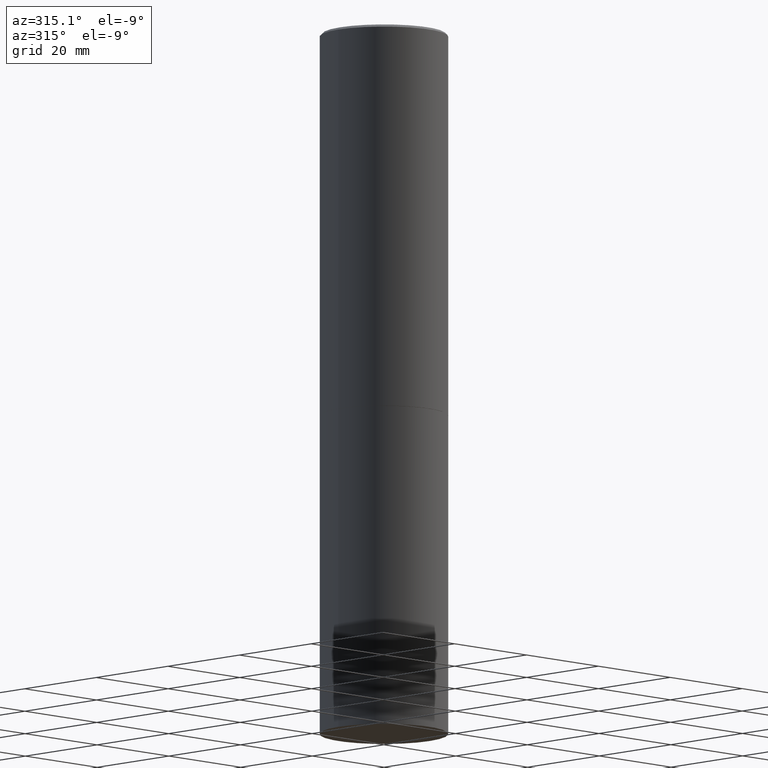
[diagram: clean part render]
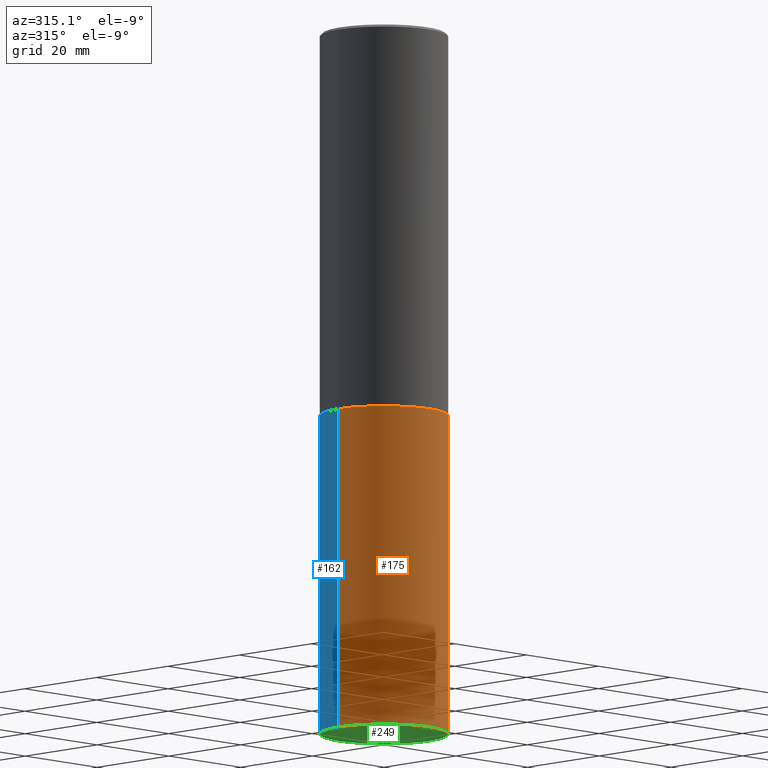
[diagram: same view with three faces highlighted in distinct colors, each labeled with its STEP entity id]
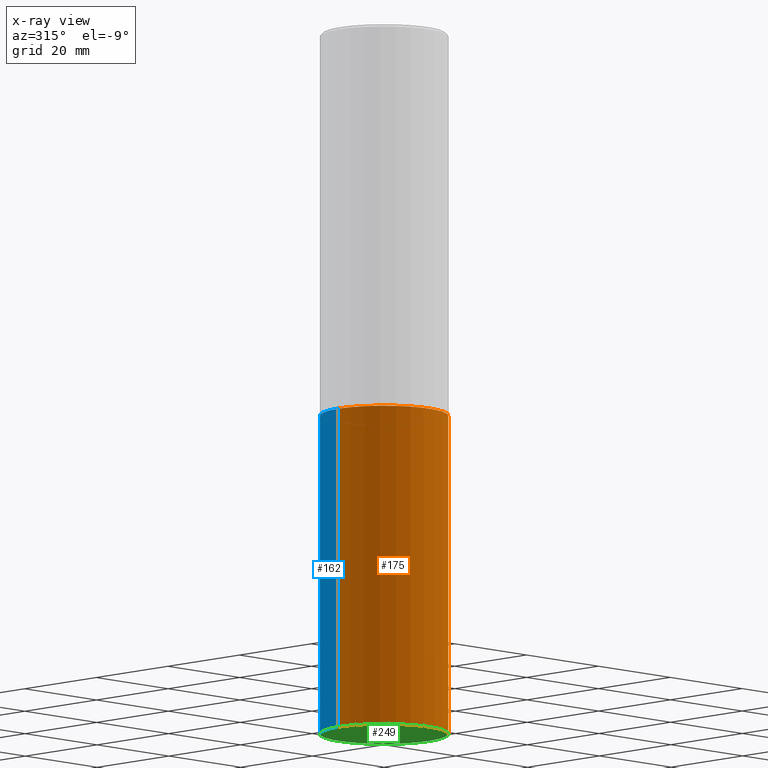
[diagram: x-ray of the same camera — body ghosted, the three highlighted faces saturated]
A machine part, auxiliary view with three faces highlighted in distinct colors.
The next image is the same camera in x-ray (body ghosted, the three faces saturated) — at least one of them is partly hidden behind the body in this view.
Their STEP definitions:

[orange] entity #175 — the highlighted cylindrical surface (partial cylindrical patch) has radius 12.7 mm, axis along (-0, 0, 1).
#14 = DIRECTION ( 'NONE',  ( -2.445468806185136597E-29, 3.491481338843145583E-15, 1.000000000000000000 ) ) ;
#15 = FACE_OUTER_BOUND ( 'NONE', #115, .T. ) ;
#22 = CARTESIAN_POINT ( 'NONE',  ( 0.5000000000000000000, -1.396592535537256813E-14, -2.999999999999999556 ) ) ;
#38 = EDGE_CURVE ( 'NONE', #145, #359, #78, .T. ) ;
#44 = CIRCLE ( 'NONE', #137, 0.5000000000000000000 ) ;
#59 = VERTEX_POINT ( 'NONE', #187 ) ;
#65 = DIRECTION ( 'NONE',  ( 1.000000000000000000, -6.982962677686262766E-15, 0.000000000000000000 ) ) ;
#72 = CARTESIAN_POINT ( 'NONE',  ( -0.5000000000000000000, 3.552713678800500929E-15, -2.459467545127452891E-29 ) ) ;
#78 = LINE ( 'NONE', #155, #141 ) ;
#91 = DIRECTION ( 'NONE',  ( 1.000000000000000000, -6.982962677686266711E-15, 4.876176775795935793E-29 ) ) ;
#103 = EDGE_CURVE ( 'NONE', #59, #359, #312, .T. ) ;
#104 = DIRECTION ( 'NONE',  ( -2.445468806185136597E-29, 3.491481338843145583E-15, 1.000000000000000000 ) ) ;
#115 = EDGE_LOOP ( 'NONE', ( #257, #281, #340, #176 ) ) ;
#137 = AXIS2_PLACEMENT_3D ( 'NONE', #265, #14, #65 ) ;
#138 = CARTESIAN_POINT ( 'NONE',  ( 7.336406418555408669E-29, -1.047444401652943478E-14, -2.999999999999999556 ) ) ;
#141 = VECTOR ( 'NONE', #195, 39.37007874015748143 ) ;
#145 = VERTEX_POINT ( 'NONE', #236 ) ;
#155 = CARTESIAN_POINT ( 'NONE',  ( 0.5000000000000000000, -3.491481338843133355E-15, 2.438088387897967896E-29 ) ) ;
#159 = AXIS2_PLACEMENT_3D ( 'NONE', #138, #200, #306 ) ;
#175 = ADVANCED_FACE ( 'NONE', ( #15 ), #353, .T. ) ;
#176 = ORIENTED_EDGE ( 'NONE', *, *, #103, .F. ) ;
#187 = CARTESIAN_POINT ( 'NONE',  ( -0.5000000000000000000, -1.128608201128286632E-14, -2.999999999999999556 ) ) ;
#195 = DIRECTION ( 'NONE',  ( -2.445468806185136877E-29, 3.491481338843145188E-15, 1.000000000000000000 ) ) ;
#200 = DIRECTION ( 'NONE',  ( -2.445468806185136597E-29, 3.491481338843145583E-15, 1.000000000000000000 ) ) ;
#236 = CARTESIAN_POINT ( 'NONE',  ( 0.5000000000000000000, -2.269462870248043307E-14, -5.500000000000000000 ) ) ;
#238 = VERTEX_POINT ( 'NONE', #351 ) ;
#252 = VECTOR ( 'NONE', #300, 39.37007874015748143 ) ;
#257 = ORIENTED_EDGE ( 'NONE', *, *, #273, .F. ) ;
#265 = CARTESIAN_POINT ( 'NONE',  ( 1.345007843401824904E-28, -1.920314736363729972E-14, -5.500000000000000000 ) ) ;
#273 = EDGE_CURVE ( 'NONE', #238, #59, #323, .T. ) ;
#281 = ORIENTED_EDGE ( 'NONE', *, *, #303, .T. ) ;
#296 = CARTESIAN_POINT ( 'NONE',  ( 0.000000000000000000, 0.000000000000000000, 0.000000000000000000 ) ) ;
#300 = DIRECTION ( 'NONE',  ( -2.445468806185136877E-29, 3.491481338843145188E-15, 1.000000000000000000 ) ) ;
#303 = EDGE_CURVE ( 'NONE', #238, #145, #44, .T. ) ;
#306 = DIRECTION ( 'NONE',  ( 1.000000000000000000, -6.982962677686266711E-15, 0.000000000000000000 ) ) ;
#312 = CIRCLE ( 'NONE', #159, 0.5000000000000000000 ) ;
#323 = LINE ( 'NONE', #72, #252 ) ;
#340 = ORIENTED_EDGE ( 'NONE', *, *, #38, .T. ) ;
#351 = CARTESIAN_POINT ( 'NONE',  ( -0.5000000000000000000, -1.128608201128286632E-14, -5.500000000000000000 ) ) ;
#353 = CYLINDRICAL_SURFACE ( 'NONE', #366, 0.5000000000000000000 ) ;
#359 = VERTEX_POINT ( 'NONE', #22 ) ;
#366 = AXIS2_PLACEMENT_3D ( 'NONE', #296, #104, #91 ) ;

[blue] entity #162 — the highlighted cylindrical surface (partial cylindrical patch) has radius 12.7 mm, axis along (-0, 0, 1).
#9 = DIRECTION ( 'NONE',  ( 1.000000000000000000, -6.982962677686266711E-15, 4.876176775795935793E-29 ) ) ;
#10 = DIRECTION ( 'NONE',  ( 1.000000000000000000, -6.982962677686262766E-15, 0.000000000000000000 ) ) ;
#22 = CARTESIAN_POINT ( 'NONE',  ( 0.5000000000000000000, -1.396592535537256813E-14, -2.999999999999999556 ) ) ;
#33 = CARTESIAN_POINT ( 'NONE',  ( 7.336406418555408669E-29, -1.047444401652943478E-14, -2.999999999999999556 ) ) ;
#38 = EDGE_CURVE ( 'NONE', #145, #359, #78, .T. ) ;
#52 = ORIENTED_EDGE ( 'NONE', *, *, #180, .F. ) ;
#59 = VERTEX_POINT ( 'NONE', #187 ) ;
#60 = FACE_OUTER_BOUND ( 'NONE', #106, .T. ) ;
#72 = CARTESIAN_POINT ( 'NONE',  ( -0.5000000000000000000, 3.552713678800500929E-15, -2.459467545127452891E-29 ) ) ;
#78 = LINE ( 'NONE', #155, #141 ) ;
#80 = ORIENTED_EDGE ( 'NONE', *, *, #194, .T. ) ;
#94 = DIRECTION ( 'NONE',  ( 1.000000000000000000, -6.982962677686266711E-15, 0.000000000000000000 ) ) ;
#99 = DIRECTION ( 'NONE',  ( -2.445468806185136597E-29, 3.491481338843145583E-15, 1.000000000000000000 ) ) ;
#100 = ORIENTED_EDGE ( 'NONE', *, *, #273, .T. ) ;
#106 = EDGE_LOOP ( 'NONE', ( #80, #100, #52, #211 ) ) ;
#141 = VECTOR ( 'NONE', #195, 39.37007874015748143 ) ;
#145 = VERTEX_POINT ( 'NONE', #236 ) ;
#147 = CARTESIAN_POINT ( 'NONE',  ( 0.000000000000000000, 0.000000000000000000, 0.000000000000000000 ) ) ;
#155 = CARTESIAN_POINT ( 'NONE',  ( 0.5000000000000000000, -3.491481338843133355E-15, 2.438088387897967896E-29 ) ) ;
#162 = ADVANCED_FACE ( 'NONE', ( #60 ), #289, .T. ) ;
#180 = EDGE_CURVE ( 'NONE', #359, #59, #332, .T. ) ;
#187 = CARTESIAN_POINT ( 'NONE',  ( -0.5000000000000000000, -1.128608201128286632E-14, -2.999999999999999556 ) ) ;
#194 = EDGE_CURVE ( 'NONE', #145, #238, #245, .T. ) ;
#195 = DIRECTION ( 'NONE',  ( -2.445468806185136877E-29, 3.491481338843145188E-15, 1.000000000000000000 ) ) ;
#206 = CARTESIAN_POINT ( 'NONE',  ( 1.345007843401824904E-28, -1.920314736363729972E-14, -5.500000000000000000 ) ) ;
#208 = DIRECTION ( 'NONE',  ( -2.445468806185136597E-29, 3.491481338843145583E-15, 1.000000000000000000 ) ) ;
#209 = AXIS2_PLACEMENT_3D ( 'NONE', #33, #99, #94 ) ;
#211 = ORIENTED_EDGE ( 'NONE', *, *, #38, .F. ) ;
#222 = AXIS2_PLACEMENT_3D ( 'NONE', #206, #208, #10 ) ;
#236 = CARTESIAN_POINT ( 'NONE',  ( 0.5000000000000000000, -2.269462870248043307E-14, -5.500000000000000000 ) ) ;
#238 = VERTEX_POINT ( 'NONE', #351 ) ;
#245 = CIRCLE ( 'NONE', #222, 0.5000000000000000000 ) ;
#252 = VECTOR ( 'NONE', #300, 39.37007874015748143 ) ;
#273 = EDGE_CURVE ( 'NONE', #238, #59, #323, .T. ) ;
#289 = CYLINDRICAL_SURFACE ( 'NONE', #356, 0.5000000000000000000 ) ;
#300 = DIRECTION ( 'NONE',  ( -2.445468806185136877E-29, 3.491481338843145188E-15, 1.000000000000000000 ) ) ;
#314 = DIRECTION ( 'NONE',  ( -2.445468806185136597E-29, 3.491481338843145583E-15, 1.000000000000000000 ) ) ;
#323 = LINE ( 'NONE', #72, #252 ) ;
#332 = CIRCLE ( 'NONE', #209, 0.5000000000000000000 ) ;
#351 = CARTESIAN_POINT ( 'NONE',  ( -0.5000000000000000000, -1.128608201128286632E-14, -5.500000000000000000 ) ) ;
#356 = AXIS2_PLACEMENT_3D ( 'NONE', #147, #314, #9 ) ;
#359 = VERTEX_POINT ( 'NONE', #22 ) ;

[green] entity #249 — the highlighted planar face has unit normal (0, -0, -1).
#10 = DIRECTION ( 'NONE',  ( 1.000000000000000000, -6.982962677686262766E-15, 0.000000000000000000 ) ) ;
#14 = DIRECTION ( 'NONE',  ( -2.445468806185136597E-29, 3.491481338843145583E-15, 1.000000000000000000 ) ) ;
#44 = CIRCLE ( 'NONE', #137, 0.5000000000000000000 ) ;
#65 = DIRECTION ( 'NONE',  ( 1.000000000000000000, -6.982962677686262766E-15, 0.000000000000000000 ) ) ;
#70 = AXIS2_PLACEMENT_3D ( 'NONE', #360, #221, #189 ) ;
#81 = PLANE ( 'NONE',  #70 ) ;
#92 = ORIENTED_EDGE ( 'NONE', *, *, #303, .F. ) ;
#137 = AXIS2_PLACEMENT_3D ( 'NONE', #265, #14, #65 ) ;
#145 = VERTEX_POINT ( 'NONE', #236 ) ;
#146 = EDGE_LOOP ( 'NONE', ( #345, #92 ) ) ;
#189 = DIRECTION ( 'NONE',  ( -1.000000000000000000, 6.982962677686265922E-15, -4.876176775795935793E-29 ) ) ;
#194 = EDGE_CURVE ( 'NONE', #145, #238, #245, .T. ) ;
#206 = CARTESIAN_POINT ( 'NONE',  ( 1.345007843401824904E-28, -1.920314736363729972E-14, -5.500000000000000000 ) ) ;
#208 = DIRECTION ( 'NONE',  ( -2.445468806185136597E-29, 3.491481338843145583E-15, 1.000000000000000000 ) ) ;
#221 = DIRECTION ( 'NONE',  ( 2.438088387897960049E-29, -3.491481338843145188E-15, -1.000000000000000000 ) ) ;
#222 = AXIS2_PLACEMENT_3D ( 'NONE', #206, #208, #10 ) ;
#236 = CARTESIAN_POINT ( 'NONE',  ( 0.5000000000000000000, -2.269462870248043307E-14, -5.500000000000000000 ) ) ;
#238 = VERTEX_POINT ( 'NONE', #351 ) ;
#245 = CIRCLE ( 'NONE', #222, 0.5000000000000000000 ) ;
#249 = ADVANCED_FACE ( 'NONE', ( #364 ), #81, .T. ) ;
#265 = CARTESIAN_POINT ( 'NONE',  ( 1.345007843401824904E-28, -1.920314736363729972E-14, -5.500000000000000000 ) ) ;
#303 = EDGE_CURVE ( 'NONE', #238, #145, #44, .T. ) ;
#345 = ORIENTED_EDGE ( 'NONE', *, *, #194, .F. ) ;
#351 = CARTESIAN_POINT ( 'NONE',  ( -0.5000000000000000000, -1.128608201128286632E-14, -5.500000000000000000 ) ) ;
#360 = CARTESIAN_POINT ( 'NONE',  ( 3.491481338843267462E-15, 0.4999999999999807931, -5.500000000000001776 ) ) ;
#364 = FACE_OUTER_BOUND ( 'NONE', #146, .T. ) ;